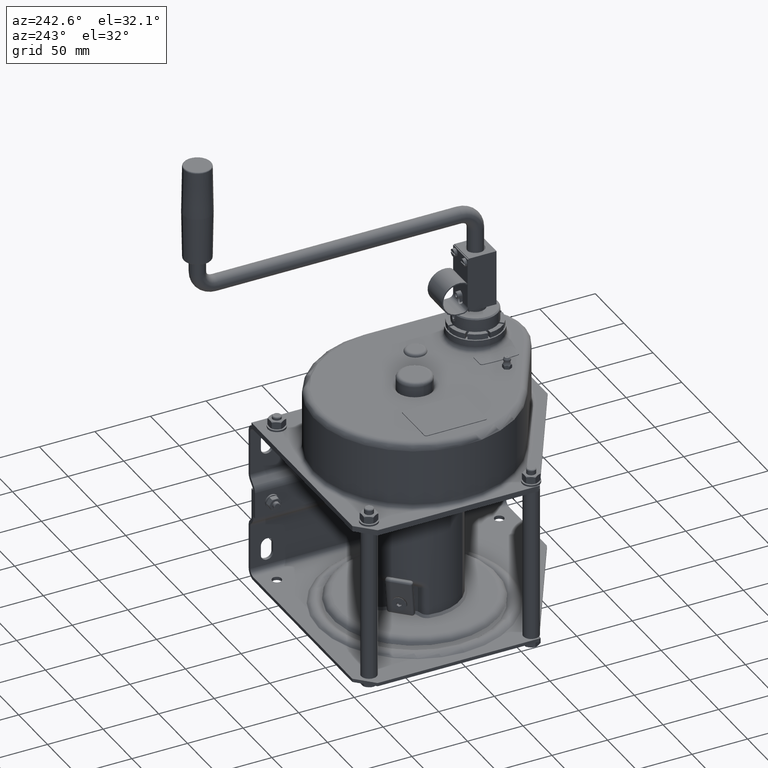
[diagram: clean part render]
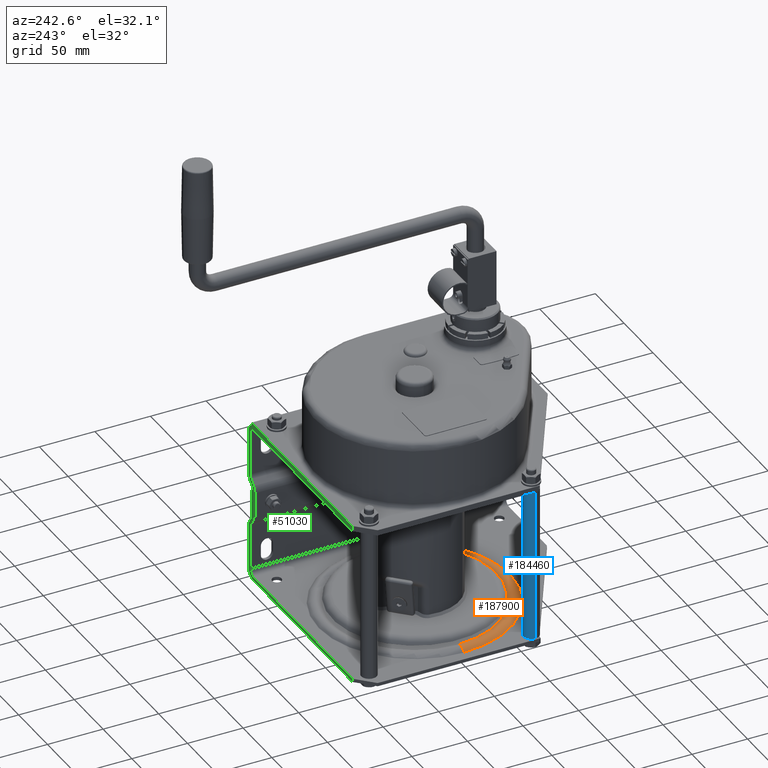
[diagram: same view with three faces highlighted in distinct colors, each labeled with its STEP entity id]
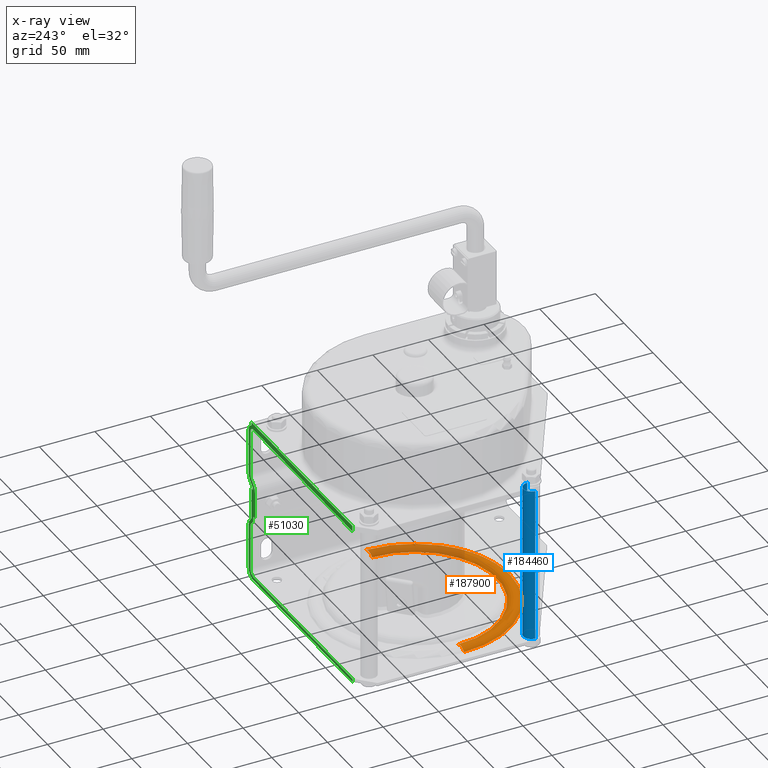
[diagram: x-ray of the same camera — body ghosted, the three highlighted faces saturated]
A machine part, auxiliary view with three faces highlighted in distinct colors.
The next image is the same camera in x-ray (body ghosted, the three faces saturated) — at least one of them is partly hidden behind the body in this view.
Their STEP definitions:

[orange] entity #187900 — the highlighted toroidal blend (fillet) surface has major radius 80 mm and minor (blend) radius 8 mm.
#60960=CARTESIAN_POINT('',(85.9628479399994,3.33333333333332,0.));
#60970=VERTEX_POINT('',#60960);
#61060=CARTESIAN_POINT('',(-85.9628479399994,3.33333333333331,0.));
#61070=VERTEX_POINT('',#61060);
#61100=CARTESIAN_POINT('',(0.,3.33333333333331,0.));
#61110=DIRECTION('',(0.,1.,0.));
#61120=DIRECTION('',(1.,0.,0.));
#61130=AXIS2_PLACEMENT_3D('',#61100,#61110,#61120);
#61140=CIRCLE('',#61130,85.9628479399994);
#61250=CARTESIAN_POINT('',(-80.,-2.,0.));
#61260=DIRECTION('',(0.,0.,1.));
#61270=DIRECTION('',(-1.,0.,0.));
#61280=AXIS2_PLACEMENT_3D('',#61250,#61260,#61270);
#61290=CIRCLE('',#61280,8.);
#61300=CARTESIAN_POINT('',(-74.0371520600005,3.33333333333332,0.));
#61310=VERTEX_POINT('',#61300);
#61320=EDGE_CURVE('',#61310,#61070,#61290,.T.);
#61340=CARTESIAN_POINT('',(0.,3.33333333333331,0.));
#61350=DIRECTION('',(0.,1.,0.));
#61360=DIRECTION('',(1.,0.,0.));
#61370=AXIS2_PLACEMENT_3D('',#61340,#61350,#61360);
#61380=CIRCLE('',#61370,74.0371520600006);
#61390=CARTESIAN_POINT('',(74.0371520600005,3.33333333333332,0.));
#61400=VERTEX_POINT('',#61390);
#61430=CARTESIAN_POINT('',(80.,-2.,0.));
#61440=DIRECTION('',(0.,0.,-1.));
#61450=DIRECTION('',(1.,0.,0.));
#61460=AXIS2_PLACEMENT_3D('',#61430,#61440,#61450);
#61470=CIRCLE('',#61460,8.);
#61480=EDGE_CURVE('',#61400,#60970,#61470,.T.);
#186960=EDGE_CURVE('',#60970,#61070,#61140,.T.);
#187780=CARTESIAN_POINT('',(0.,-2.,0.));
#187790=DIRECTION('',(0.,1.,0.));
#187800=DIRECTION('',(1.,0.,0.));
#187810=AXIS2_PLACEMENT_3D('',#187780,#187790,#187800);
#187820=TOROIDAL_SURFACE('',#187810,80.,8.);
#187830=EDGE_CURVE('',#61400,#61310,#61380,.T.);
#187840=ORIENTED_EDGE('',*,*,#187830,.F.);
#187850=ORIENTED_EDGE('',*,*,#61320,.F.);
#187860=ORIENTED_EDGE('',*,*,#186960,.T.);
#187870=ORIENTED_EDGE('',*,*,#61480,.T.);
#187880=EDGE_LOOP('',(#187870,#187860,#187850,#187840));
#187890=FACE_OUTER_BOUND('',#187880,.T.);
#187900=ADVANCED_FACE('',(#187890),#187820,.T.);

[blue] entity #184460 — the highlighted cylindrical surface (edge-blend (fillet) strip) has radius 7 mm, axis along (0, 0, -1).
#8390=CARTESIAN_POINT('',(86.5,142.,-60.));
#8400=DIRECTION('',(0.,-1.,0.));
#8410=DIRECTION('',(1.,0.,0.));
#8420=AXIS2_PLACEMENT_3D('',#8390,#8400,#8410);
#8430=CIRCLE('',#8420,7.);
#8440=CARTESIAN_POINT('',(93.5,142.,-60.));
#8450=VERTEX_POINT('',#8440);
#8480=CARTESIAN_POINT('',(79.5,142.,-60.));
#8490=VERTEX_POINT('',#8480);
#8500=EDGE_CURVE('',#8450,#8490,#8430,.T.);
#59430=CARTESIAN_POINT('',(86.5,3.,-60.));
#59440=DIRECTION('',(0.,-1.,0.));
#59450=DIRECTION('',(1.,0.,0.));
#59460=AXIS2_PLACEMENT_3D('',#59430,#59440,#59450);
#59470=CIRCLE('',#59460,7.);
#59480=CARTESIAN_POINT('',(79.5,3.,-60.));
#59490=VERTEX_POINT('',#59480);
#59520=CARTESIAN_POINT('',(93.5,3.,-60.));
#59530=VERTEX_POINT('',#59520);
#59540=EDGE_CURVE('',#59530,#59490,#59470,.T.);
#60670=CARTESIAN_POINT('',(93.5,142.,-60.));
#60680=DIRECTION('',(0.,-1.,0.));
#60690=VECTOR('',#60680,1.);
#60700=LINE('',#60670,#60690);
#60710=EDGE_CURVE('',#8450,#59530,#60700,.T.);
#60760=CARTESIAN_POINT('',(79.5,142.,-60.));
#60770=DIRECTION('',(0.,-1.,0.));
#60780=VECTOR('',#60770,1.);
#60790=LINE('',#60760,#60780);
#60800=EDGE_CURVE('',#8490,#59490,#60790,.T.);
#184350=CARTESIAN_POINT('',(86.5,142.,-60.));
#184360=DIRECTION('',(0.,-1.,0.));
#184370=DIRECTION('',(1.,0.,0.));
#184380=AXIS2_PLACEMENT_3D('',#184350,#184360,#184370);
#184390=CYLINDRICAL_SURFACE('',#184380,7.);
#184400=ORIENTED_EDGE('',*,*,#59540,.F.);
#184410=ORIENTED_EDGE('',*,*,#60800,.T.);
#184420=ORIENTED_EDGE('',*,*,#8500,.T.);
#184430=ORIENTED_EDGE('',*,*,#60710,.F.);
#184440=EDGE_LOOP('',(#184430,#184420,#184410,#184400));
#184450=FACE_OUTER_BOUND('',#184440,.T.);
#184460=ADVANCED_FACE('',(#184450),#184390,.T.);

[green] entity #51030 — the highlighted planar face has unit normal (0, 1, 0).
#120=CARTESIAN_POINT('',(-97.6568542494924,91.4142135623731,97.5));
#130=VERTEX_POINT('',#120);
#290=CARTESIAN_POINT('',(-100.,97.0710678118654,97.5));
#300=VERTEX_POINT('',#290);
#330=CARTESIAN_POINT('',(-92.,97.0710678118654,97.5));
#340=DIRECTION('',(0.,0.,-1.));
#350=DIRECTION('',(-0.707106781186549,-0.707106781186546,0.));
#360=AXIS2_PLACEMENT_3D('',#330,#340,#350);
#370=CIRCLE('',#360,7.99999999999998);
#380=EDGE_CURVE('',#130,#300,#370,.T.);
#540=CARTESIAN_POINT('',(-95.,147.,97.5));
#550=VERTEX_POINT('',#540);
#580=CARTESIAN_POINT('',(-95.,145.,97.5));
#590=DIRECTION('',(0.,-1.,0.));
#600=VECTOR('',#590,1.);
#610=LINE('',#580,#600);
#620=CARTESIAN_POINT('',(-95.,144.416198487096,97.5));
#630=VERTEX_POINT('',#620);
#640=EDGE_CURVE('',#550,#630,#610,.T.);
#880=CARTESIAN_POINT('',(-97.,83.6862915010152,97.5));
#890=DIRECTION('',(0.,0.,-1.));
#900=DIRECTION('',(-1.,0.,0.));
#910=AXIS2_PLACEMENT_3D('',#880,#890,#900);
#920=CIRCLE('',#910,4.99999999999999);
#930=CARTESIAN_POINT('',(-93.4644660940673,87.2218254069479,97.5));
#940=VERTEX_POINT('',#930);
#950=CARTESIAN_POINT('',(-92.1756689603951,85.,97.5));
#960=VERTEX_POINT('',#950);
#970=EDGE_CURVE('',#940,#960,#920,.T.);
#1340=CARTESIAN_POINT('',(79.9999999999999,142.,97.5000000000001));
#1350=VERTEX_POINT('',#1340);
#1400=CARTESIAN_POINT('',(79.9999999999999,145.,97.5000000000001));
#1410=DIRECTION('',(0.,1.,0.));
#1420=VECTOR('',#1410,1.);
#1430=LINE('',#1400,#1420);
#1440=CARTESIAN_POINT('',(79.9999999999999,147.,97.5000000000001));
#1450=VERTEX_POINT('',#1440);
#1460=EDGE_CURVE('',#1350,#1450,#1430,.T.);
#2810=CARTESIAN_POINT('',(-89.,83.6862915010153,97.5));
#2820=VERTEX_POINT('',#2810);
#2850=CARTESIAN_POINT('',(-97.,83.6862915010153,97.5));
#2860=DIRECTION('',(0.,0.,-1.));
#2870=DIRECTION('',(-1.,0.,0.));
#2880=AXIS2_PLACEMENT_3D('',#2850,#2860,#2870);
#2890=CIRCLE('',#2880,7.99999999999998);
#2900=CARTESIAN_POINT('',(-91.3431457505076,89.3431457505076,97.5));
#2910=VERTEX_POINT('',#2900);
#2920=EDGE_CURVE('',#2910,#2820,#2890,.T.);
#8120=CARTESIAN_POINT('',(-92.,142.,97.5));
#8130=VERTEX_POINT('',#8120);
#8160=CARTESIAN_POINT('',(0.,142.,97.5));
#8170=DIRECTION('',(-1.,0.,0.));
#8180=VECTOR('',#8170,1.);
#8190=LINE('',#8160,#8180);
#8200=EDGE_CURVE('',#1350,#8130,#8190,.T.);
#40440=CARTESIAN_POINT('',(-95.,58.3137084989848,97.5));
#40450=VERTEX_POINT('',#40440);
#40480=CARTESIAN_POINT('',(-100.,58.3137084989848,97.5));
#40490=DIRECTION('',(0.,0.,1.));
#40500=DIRECTION('',(0.707106781186548,-0.707106781186548,0.));
#40510=AXIS2_PLACEMENT_3D('',#40480,#40490,#40500);
#40520=CIRCLE('',#40510,5.);
#40530=CARTESIAN_POINT('',(-96.4644660940673,54.778174593052,97.5));
#40540=VERTEX_POINT('',#40530);
#40550=EDGE_CURVE('',#40540,#40450,#40520,.T.);
#40710=CARTESIAN_POINT('',(-92.,137.,97.5));
#40720=DIRECTION('',(0.,0.,1.));
#40730=DIRECTION('',(0.,1.,0.));
#40740=AXIS2_PLACEMENT_3D('',#40710,#40720,#40730);
#40750=CIRCLE('',#40740,8.);
#40760=CARTESIAN_POINT('',(-100.,137.,97.5));
#40770=VERTEX_POINT('',#40760);
#40780=EDGE_CURVE('',#630,#40770,#40750,.T.);
#41110=CARTESIAN_POINT('',(-151.242640687119,145.,97.5));
#41120=DIRECTION('',(0.707106781186547,-0.707106781186548,
-1.11022302462516E-16));
#41130=VECTOR('',#41120,1.);
#41140=LINE('',#41110,#41130);
#41150=EDGE_CURVE('',#130,#940,#41140,.T.);
#41350=CARTESIAN_POINT('',(-197.,-45.7573593128807,97.5));
#41360=DIRECTION('',(0.707106781186547,0.707106781186548,
-1.11022302462516E-16));
#41370=VECTOR('',#41360,1.);
#41380=LINE('',#41350,#41370);
#41390=CARTESIAN_POINT('',(-97.6568542494924,53.5857864376269,97.5));
#41400=VERTEX_POINT('',#41390);
#41410=EDGE_CURVE('',#41400,#40540,#41380,.T.);
#42330=CARTESIAN_POINT('',(-97.,97.0710678118654,97.5));
#42340=VERTEX_POINT('',#42330);
#42390=CARTESIAN_POINT('',(-97.,288.688684694434,97.5));
#42400=DIRECTION('',(0.,1.,0.));
#42410=VECTOR('',#42400,1.);
#42420=LINE('',#42390,#42410);
#42430=CARTESIAN_POINT('',(-97.,137.,97.5));
#42440=VERTEX_POINT('',#42430);
#42450=EDGE_CURVE('',#42340,#42440,#42420,.T.);
#43710=CARTESIAN_POINT('',(-100.,188.688684694434,97.5));
#43720=DIRECTION('',(-0.,-1.,-6.12303176911189E-17));
#43730=VECTOR('',#43720,1.);
#43740=LINE('',#43710,#43730);
#43750=EDGE_CURVE('',#40770,#300,#43740,.T.);
#45130=CARTESIAN_POINT('',(-95.5355339059327,93.5355339059327,97.5));
#45140=VERTEX_POINT('',#45130);
#45170=CARTESIAN_POINT('',(-92.,97.0710678118654,97.5));
#45180=DIRECTION('',(0.,0.,1.));
#45190=DIRECTION('',(-1.,0.,0.));
#45200=AXIS2_PLACEMENT_3D('',#45170,#45180,#45190);
#45210=CIRCLE('',#45200,5.);
#45220=EDGE_CURVE('',#42340,#45140,#45210,.T.);
#45330=CARTESIAN_POINT('',(-92.,137.,97.5));
#45340=DIRECTION('',(0.,0.,1.));
#45350=DIRECTION('',(0.,1.,0.));
#45360=AXIS2_PLACEMENT_3D('',#45330,#45340,#45350);
#45370=CIRCLE('',#45360,5.);
#45380=EDGE_CURVE('',#8130,#42440,#45370,.T.);
#45560=CARTESIAN_POINT('',(-147.,145.,97.5));
#45570=DIRECTION('',(-0.707106781186547,0.707106781186548,
1.11022302462516E-16));
#45580=VECTOR('',#45570,1.);
#45590=LINE('',#45560,#45580);
#45600=EDGE_CURVE('',#2910,#45140,#45590,.T.);
#45820=CARTESIAN_POINT('',(-89.,60.,97.5));
#45830=VERTEX_POINT('',#45820);
#46000=CARTESIAN_POINT('',(-92.,60.,97.5));
#46010=VERTEX_POINT('',#46000);
#46040=CARTESIAN_POINT('',(-89.,60.,97.5));
#46050=DIRECTION('',(-1.,0.,0.));
#46060=VECTOR('',#46050,1.);
#46070=LINE('',#46040,#46060);
#46080=EDGE_CURVE('',#45830,#46010,#46070,.T.);
#46720=CARTESIAN_POINT('',(-95.5355339059327,51.4644660940673,97.5));
#46730=VERTEX_POINT('',#46720);
#46760=CARTESIAN_POINT('',(-192.757359312881,-45.7573593128807,97.5));
#46770=DIRECTION('',(-0.707106781186547,-0.707106781186548,
1.11022302462516E-16));
#46780=VECTOR('',#46770,1.);
#46790=LINE('',#46760,#46780);
#46800=CARTESIAN_POINT('',(-94.3431457505076,52.6568542494924,97.5));
#46810=VERTEX_POINT('',#46800);
#46820=EDGE_CURVE('',#46810,#46730,#46790,.T.);
#47310=CARTESIAN_POINT('',(-92.,47.9289321881346,97.5));
#47320=DIRECTION('',(0.,0.,-1.));
#47330=DIRECTION('',(-1.,0.,0.));
#47340=AXIS2_PLACEMENT_3D('',#47310,#47320,#47330);
#47350=CIRCLE('',#47340,5.);
#47360=CARTESIAN_POINT('',(-97.,47.9289321881346,97.5));
#47370=VERTEX_POINT('',#47360);
#47380=EDGE_CURVE('',#47370,#46730,#47350,.T.);
#47790=CARTESIAN_POINT('',(-92.,3.,97.5));
#47800=VERTEX_POINT('',#47790);
#47830=CARTESIAN_POINT('',(-92.,8.,97.5));
#47840=DIRECTION('',(0.,0.,-1.));
#47850=DIRECTION('',(0.,-1.,0.));
#47860=AXIS2_PLACEMENT_3D('',#47830,#47840,#47850);
#47870=CIRCLE('',#47860,5.);
#47880=CARTESIAN_POINT('',(-97.,8.,97.5));
#47890=VERTEX_POINT('',#47880);
#47900=EDGE_CURVE('',#47800,#47890,#47870,.T.);
#48100=CARTESIAN_POINT('',(79.9999999999999,0.,97.5));
#48110=VERTEX_POINT('',#48100);
#48160=CARTESIAN_POINT('',(80.,1.5,97.5));
#48170=DIRECTION('',(0.,-1.,0.));
#48180=VECTOR('',#48170,1.);
#48190=LINE('',#48160,#48180);
#48200=CARTESIAN_POINT('',(79.9999999999999,3.,97.5));
#48210=VERTEX_POINT('',#48200);
#48220=EDGE_CURVE('',#48210,#48110,#48190,.T.);
#49550=CARTESIAN_POINT('',(-100.,8.,97.5));
#49560=VERTEX_POINT('',#49550);
#49590=CARTESIAN_POINT('',(-92.,8.,97.5));
#49600=DIRECTION('',(0.,0.,-1.));
#49610=DIRECTION('',(0.,-1.,0.));
#49620=AXIS2_PLACEMENT_3D('',#49590,#49600,#49610);
#49630=CIRCLE('',#49620,8.);
#49640=CARTESIAN_POINT('',(-92.,0.,97.5));
#49650=VERTEX_POINT('',#49640);
#49660=EDGE_CURVE('',#49650,#49560,#49630,.T.);
#49820=CARTESIAN_POINT('',(-92.,85.,97.5));
#49830=DIRECTION('',(-1.,0.,0.));
#49840=VECTOR('',#49830,1.);
#49850=LINE('',#49820,#49840);
#49860=CARTESIAN_POINT('',(-95.,85.,97.5));
#49870=VERTEX_POINT('',#49860);
#49880=EDGE_CURVE('',#960,#49870,#49850,.T.);
#50080=CARTESIAN_POINT('',(-95.,145.,97.5));
#50090=DIRECTION('',(-4.87229304521212E-16,0.,1.));
#50100=DIRECTION('',(1.,0.,4.87229304521212E-16));
#50110=AXIS2_PLACEMENT_3D('',#50080,#50090,#50100);
#50120=PLANE('',#50110);
#50130=ORIENTED_EDGE('',*,*,#640,.T.);
#50140=CARTESIAN_POINT('',(-95.,147.,97.5));
#50150=DIRECTION('',(1.,0.,4.87229304521212E-16));
#50160=VECTOR('',#50150,1.);
#50170=LINE('',#50140,#50160);
#50180=EDGE_CURVE('',#550,#1450,#50170,.T.);
#50190=ORIENTED_EDGE('',*,*,#50180,.F.);
#50200=ORIENTED_EDGE('',*,*,#1460,.T.);
#50210=ORIENTED_EDGE('',*,*,#8200,.F.);
#50220=ORIENTED_EDGE('',*,*,#45380,.F.);
#50230=ORIENTED_EDGE('',*,*,#42450,.T.);
#50240=ORIENTED_EDGE('',*,*,#45220,.F.);
#50250=ORIENTED_EDGE('',*,*,#45600,.T.);
#50260=ORIENTED_EDGE('',*,*,#2920,.F.);
#50270=CARTESIAN_POINT('',(-89.,290.223040456318,97.5));
#50280=DIRECTION('',(0.,1.,0.));
#50290=VECTOR('',#50280,1.);
#50300=LINE('',#50270,#50290);
#50310=EDGE_CURVE('',#45830,#2820,#50300,.T.);
#50320=ORIENTED_EDGE('',*,*,#50310,.T.);
#50330=ORIENTED_EDGE('',*,*,#46080,.F.);
#50340=CARTESIAN_POINT('',(-92.,-145.223040456318,97.5));
#50350=DIRECTION('',(0.,-1.,0.));
#50360=VECTOR('',#50350,1.);
#50370=LINE('',#50340,#50360);
#50380=CARTESIAN_POINT('',(-92.,58.3137084989848,97.5));
#50390=VERTEX_POINT('',#50380);
#50400=EDGE_CURVE('',#46010,#50390,#50370,.T.);
#50410=ORIENTED_EDGE('',*,*,#50400,.F.);
#50420=CARTESIAN_POINT('',(-100.,58.3137084989848,97.5));
#50430=DIRECTION('',(0.,0.,1.));
#50440=DIRECTION('',(0.707106781186548,-0.707106781186548,0.));
#50450=AXIS2_PLACEMENT_3D('',#50420,#50430,#50440);
#50460=CIRCLE('',#50450,7.99999999999998);
#50470=EDGE_CURVE('',#46810,#50390,#50460,.T.);
#50480=ORIENTED_EDGE('',*,*,#50470,.T.);
#50490=ORIENTED_EDGE('',*,*,#46820,.F.);
#50500=ORIENTED_EDGE('',*,*,#47380,.T.);
#50510=CARTESIAN_POINT('',(-97.,-143.688684694434,97.5));
#50520=DIRECTION('',(0.,-1.,0.));
#50530=VECTOR('',#50520,1.);
#50540=LINE('',#50510,#50530);
#50550=EDGE_CURVE('',#47370,#47890,#50540,.T.);
#50560=ORIENTED_EDGE('',*,*,#50550,.F.);
#50570=ORIENTED_EDGE('',*,*,#47900,.T.);
#50580=CARTESIAN_POINT('',(0.,3.,97.5));
#50590=DIRECTION('',(-1.,0.,0.));
#50600=VECTOR('',#50590,1.);
#50610=LINE('',#50580,#50600);
#50620=EDGE_CURVE('',#48210,#47800,#50610,.T.);
#50630=ORIENTED_EDGE('',*,*,#50620,.T.);
#50640=ORIENTED_EDGE('',*,*,#48220,.F.);
#50650=CARTESIAN_POINT('',(0.,0.,97.5));
#50660=DIRECTION('',(-1.,0.,0.));
#50670=VECTOR('',#50660,1.);
#50680=LINE('',#50650,#50670);
#50690=EDGE_CURVE('',#48110,#49650,#50680,.T.);
#50700=ORIENTED_EDGE('',*,*,#50690,.F.);
#50710=ORIENTED_EDGE('',*,*,#49660,.F.);
#50720=CARTESIAN_POINT('',(-100.,-43.6886846944342,97.5));
#50730=DIRECTION('',(0.,1.,-6.12303176911189E-17));
#50740=VECTOR('',#50730,1.);
#50750=LINE('',#50720,#50740);
#50760=CARTESIAN_POINT('',(-100.,47.9289321881346,97.5));
#50770=VERTEX_POINT('',#50760);
#50780=EDGE_CURVE('',#49560,#50770,#50750,.T.);
#50790=ORIENTED_EDGE('',*,*,#50780,.F.);
#50800=CARTESIAN_POINT('',(-92.,47.9289321881346,97.5));
#50810=DIRECTION('',(0.,0.,1.));
#50820=DIRECTION('',(-0.707106781186549,0.707106781186546,0.));
#50830=AXIS2_PLACEMENT_3D('',#50800,#50810,#50820);
#50840=CIRCLE('',#50830,7.99999999999998);
#50850=EDGE_CURVE('',#41400,#50770,#50840,.T.);
#50860=ORIENTED_EDGE('',*,*,#50850,.T.);
#50870=ORIENTED_EDGE('',*,*,#41410,.F.);
#50880=ORIENTED_EDGE('',*,*,#40550,.F.);
#50890=CARTESIAN_POINT('',(-95.,-45.2230404563177,97.5));
#50900=DIRECTION('',(0.,1.,-6.12303176911189E-17));
#50910=VECTOR('',#50900,1.);
#50920=LINE('',#50890,#50910);
#50930=EDGE_CURVE('',#40450,#49870,#50920,.T.);
#50940=ORIENTED_EDGE('',*,*,#50930,.F.);
#50950=ORIENTED_EDGE('',*,*,#49880,.T.);
#50960=ORIENTED_EDGE('',*,*,#970,.T.);
#50970=ORIENTED_EDGE('',*,*,#41150,.T.);
#50980=ORIENTED_EDGE('',*,*,#380,.F.);
#50990=ORIENTED_EDGE('',*,*,#43750,.T.);
#51000=ORIENTED_EDGE('',*,*,#40780,.T.);
#51010=EDGE_LOOP('',(#51000,#50990,#50980,#50970,#50960,#50950,#50940,
#50880,#50870,#50860,#50790,#50710,#50700,#50640,#50630,#50570,#50560,
#50500,#50490,#50480,#50410,#50330,#50320,#50260,#50250,#50240,#50230,
#50220,#50210,#50200,#50190,#50130));
#51020=FACE_OUTER_BOUND('',#51010,.T.);
#51030=ADVANCED_FACE('',(#51020),#50120,.T.);